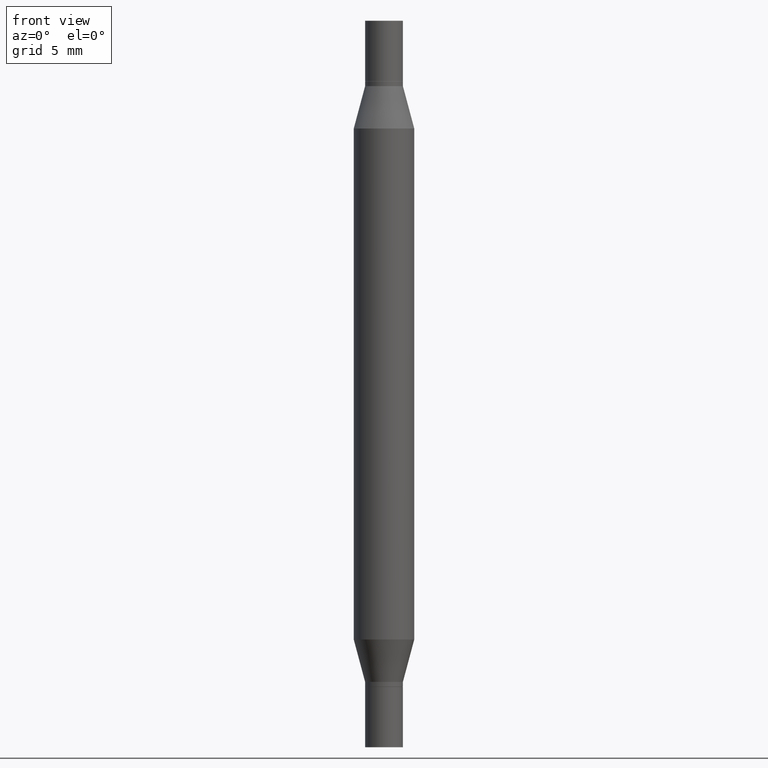
[diagram: clean part render]
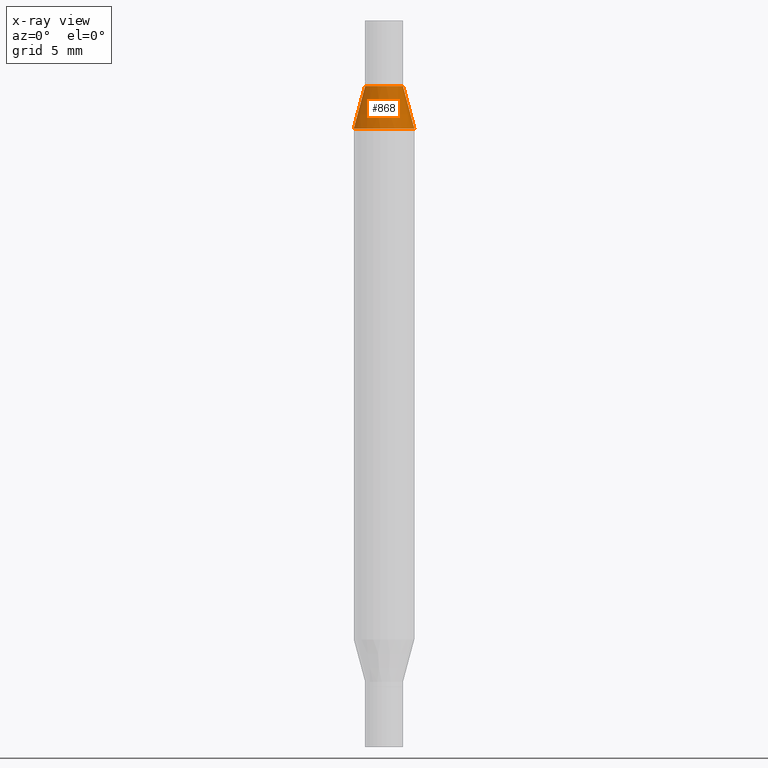
[diagram: x-ray — body ghosted, one internal face saturated and labeled with its STEP entity id]
A machine part, front view, then the same camera in x-ray: the body is ghosted and one INTERNAL B-rep face — a face not visible from any outside direction — is saturated and labeled: STEP entity #868.
In plain terms, the highlighted conical surface has half-angle 15 deg.
Its self-contained STEP definition (entity closure, byte-faithful):
#11 = EDGE_CURVE ( 'NONE', #909, #675, #471, .T. ) ;
#70 = CIRCLE ( 'NONE', #289, 0.03904999999999992505 ) ;
#95 = DIRECTION ( 'NONE',  ( -2.445468806185136597E-29, -3.491805094961124077E-15, -1.000000000000000000 ) ) ;
#101 = DIRECTION ( 'NONE',  ( 0.2588190451025215721, -5.180148453816008779E-15, -0.9659258262890679791 ) ) ;
#113 = LINE ( 'NONE', #477, #418 ) ;
#122 = ORIENTED_EDGE ( 'NONE', *, *, #660, .F. ) ;
#158 = ORIENTED_EDGE ( 'NONE', *, *, #741, .F. ) ;
#204 = CARTESIAN_POINT ( 'NONE',  ( 0.06250000000000000000, -1.213176917961717218E-15, -0.2225165914374896692 ) ) ;
#212 = VERTEX_POINT ( 'NONE', #253 ) ;
#227 = DIRECTION ( 'NONE',  ( 1.000000000000000000, -6.982962677686267499E-15, 0.000000000000000000 ) ) ;
#253 = CARTESIAN_POINT ( 'NONE',  ( 0.03904999999999992505, -7.438355632949145092E-16, -0.1349999999999995093 ) ) ;
#286 = VECTOR ( 'NONE', #765, 39.37007874015748143 ) ;
#289 = AXIS2_PLACEMENT_3D ( 'NONE', #973, #299, #227 ) ;
#299 = DIRECTION ( 'NONE',  ( 2.445468806185136597E-29, 3.491805094961124077E-15, 1.000000000000000000 ) ) ;
#353 = AXIS2_PLACEMENT_3D ( 'NONE', #557, #625, #864 ) ;
#379 = EDGE_CURVE ( 'NONE', #675, #403, #777, .T. ) ;
#403 = VERTEX_POINT ( 'NONE', #204 ) ;
#418 = VECTOR ( 'NONE', #101, 39.37007874015748143 ) ;
#453 = CARTESIAN_POINT ( 'NONE',  ( -0.03904999999999992505, -2.032484239182884731E-16, -0.1349999999999995093 ) ) ;
#471 = LINE ( 'NONE', #453, #286 ) ;
#477 = CARTESIAN_POINT ( 'NONE',  ( 0.03904999999999992505, -7.438355632949145092E-16, -0.1349999999999995093 ) ) ;
#533 = CARTESIAN_POINT ( 'NONE',  ( -0.06250000000000000000, -3.479606257456047271E-16, -0.2225165914374896692 ) ) ;
#557 = CARTESIAN_POINT ( 'NONE',  ( 3.124045826058680346E-29, -7.767417506063242664E-16, -0.2225165914374896692 ) ) ;
#619 = AXIS2_PLACEMENT_3D ( 'NONE', #779, #95, #923 ) ;
#625 = DIRECTION ( 'NONE',  ( 2.445468806185136597E-29, 3.491805094961124077E-15, 1.000000000000000000 ) ) ;
#660 = EDGE_CURVE ( 'NONE', #909, #212, #70, .T. ) ;
#675 = VERTEX_POINT ( 'NONE', #533 ) ;
#683 = FACE_OUTER_BOUND ( 'NONE', #818, .T. ) ;
#741 = EDGE_CURVE ( 'NONE', #212, #403, #113, .T. ) ;
#764 = CARTESIAN_POINT ( 'NONE',  ( -0.03904999999999992505, -1.866623497172225345E-16, -0.1349999999999995093 ) ) ;
#765 = DIRECTION ( 'NONE',  ( -0.2588190451025215721, -1.597197180879712551E-15, -0.9659258262890679791 ) ) ;
#777 = CIRCLE ( 'NONE', #353, 0.06250000000000000000 ) ;
#779 = CARTESIAN_POINT ( 'NONE',  ( 3.338064920442711836E-29, -4.711508707312662841E-16, -0.1349999999999995093 ) ) ;
#818 = EDGE_LOOP ( 'NONE', ( #122, #832, #874, #158 ) ) ;
#832 = ORIENTED_EDGE ( 'NONE', *, *, #11, .T. ) ;
#864 = DIRECTION ( 'NONE',  ( 1.000000000000000000, -6.982962677686266711E-15, 0.000000000000000000 ) ) ;
#868 = ADVANCED_FACE ( 'NONE', ( #683 ), #956, .T. ) ;
#874 = ORIENTED_EDGE ( 'NONE', *, *, #379, .T. ) ;
#909 = VERTEX_POINT ( 'NONE', #764 ) ;
#923 = DIRECTION ( 'NONE',  ( 1.000000000000000000, -6.982962677686267499E-15, 0.000000000000000000 ) ) ;
#956 = CONICAL_SURFACE ( 'NONE', #619, 0.03904999999999992505, 0.2617993877991502960 ) ;
#973 = CARTESIAN_POINT ( 'NONE',  ( 3.338064920442711836E-29, -4.711508707312662841E-16, -0.1349999999999995093 ) ) ;